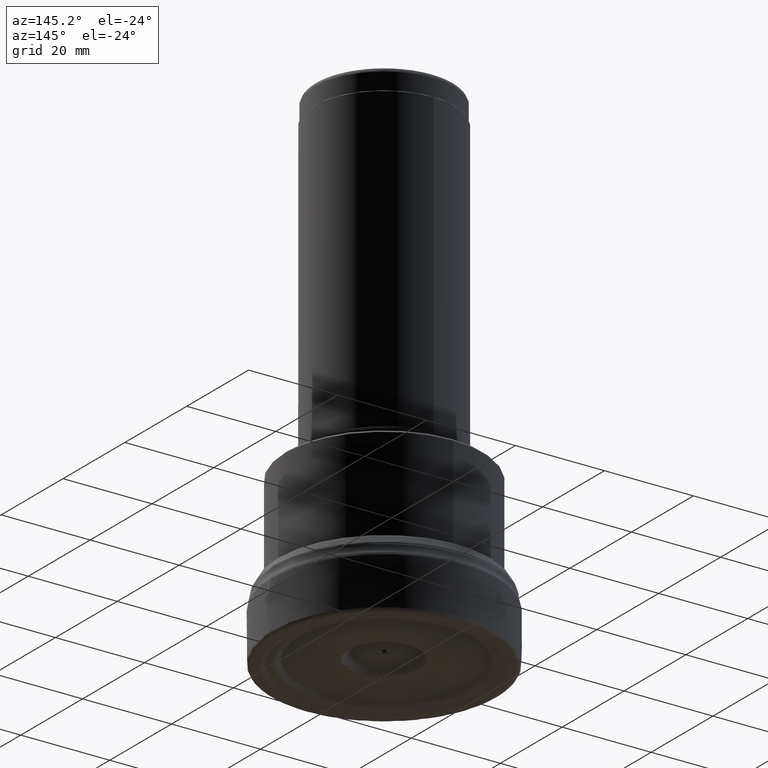
[diagram: clean part render]
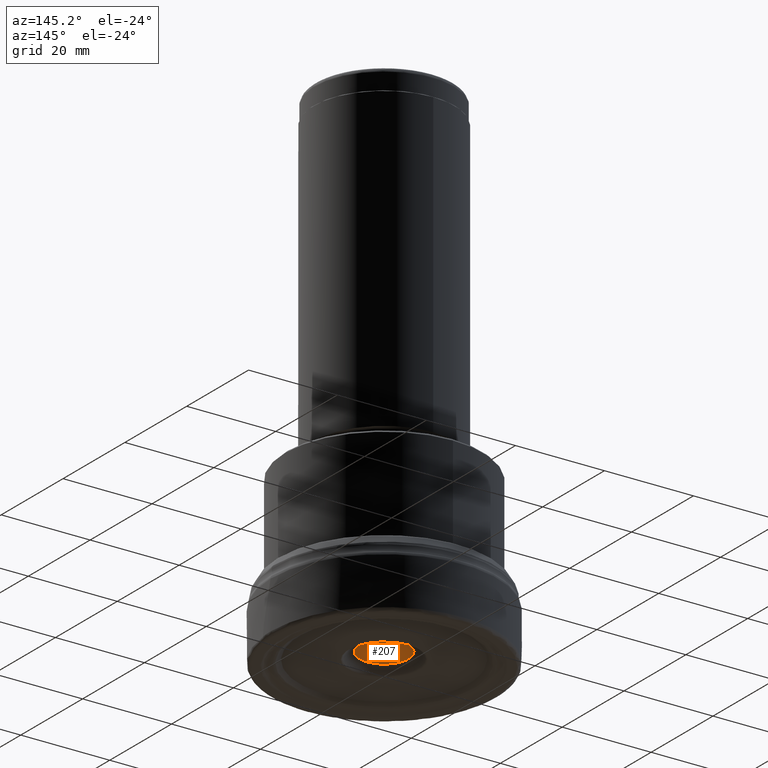
[diagram: same view with one face highlighted and labeled with its STEP entity id]
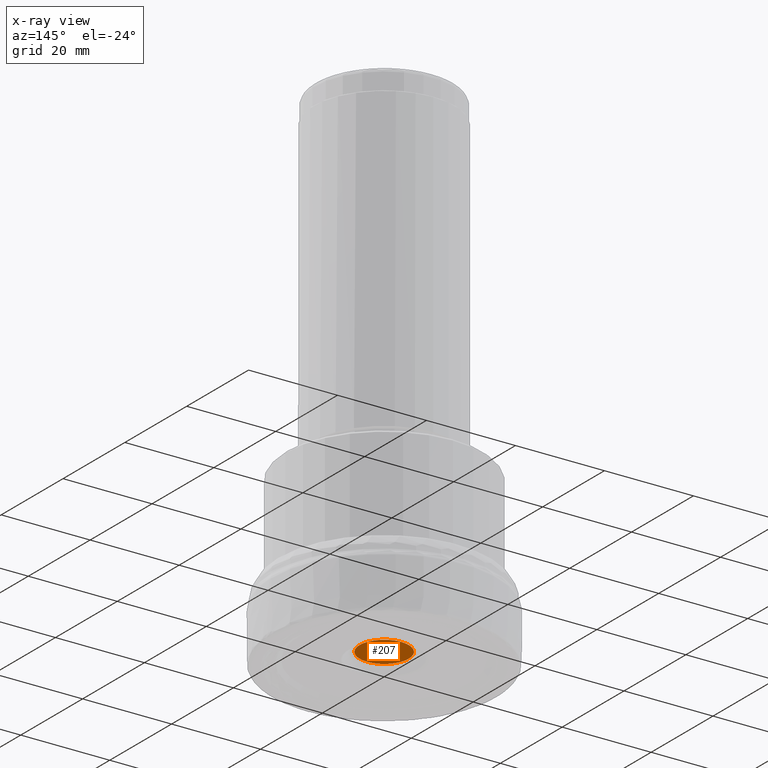
[diagram: x-ray of the same camera — body ghosted, the highlighted face saturated]
A machine part, auxiliary view. The second image highlights one B-rep face of the part: STEP entity #207.
The next image is the same camera in x-ray: the body ghosted, the highlighted face saturated — about 0% of this face is hidden behind the body in this view.
In plain terms, the highlighted planar face has unit normal (0, -0, -1).
Its self-contained STEP definition (entity closure, byte-faithful):
#182=PLANE('',#945);
#207=ADVANCED_FACE('',(#326,#327),#182,.T.);
#279=CIRCLE('',#943,5.51429726338208);
#280=CIRCLE('',#944,1.);
#326=FACE_BOUND('',#432,.T.);
#327=FACE_BOUND('',#433,.T.);
#432=EDGE_LOOP('',(#601));
#433=EDGE_LOOP('',(#602));
#601=ORIENTED_EDGE('',*,*,#826,.T.);
#602=ORIENTED_EDGE('',*,*,#827,.T.);
#751=VERTEX_POINT('',#1679);
#752=VERTEX_POINT('',#1681);
#826=EDGE_CURVE('',#751,#751,#279,.T.);
#827=EDGE_CURVE('',#752,#752,#280,.T.);
#943=AXIS2_PLACEMENT_3D('',#1678,#1058,#1059);
#944=AXIS2_PLACEMENT_3D('',#1680,#1060,#1061);
#945=AXIS2_PLACEMENT_3D('',#1682,#1062,#1063);
#1058=DIRECTION('',(0.,-1.17145536458252E-15,-1.));
#1059=DIRECTION('',(0.,1.,-1.1796993749523E-15));
#1060=DIRECTION('',(0.,1.17145536458252E-15,1.));
#1061=DIRECTION('',(0.,-1.,1.30104260698261E-15));
#1062=DIRECTION('',(0.,-1.17145536458252E-15,-1.));
#1063=DIRECTION('',(0.,1.,-1.17137202715334E-15));
#1678=CARTESIAN_POINT('',(0.,3.51436609374757E-15,3.));
#1679=CARTESIAN_POINT('',(0.,5.51429726338208,2.99999999999999));
#1680=CARTESIAN_POINT('',(3.5527136788005E-15,3.51436609374757E-15,3.));
#1681=CARTESIAN_POINT('',(3.5527136788005E-15,-0.999999999999997,3.));
#1682=CARTESIAN_POINT('',(3.5527136788005E-15,3.51436609374757E-15,3.));